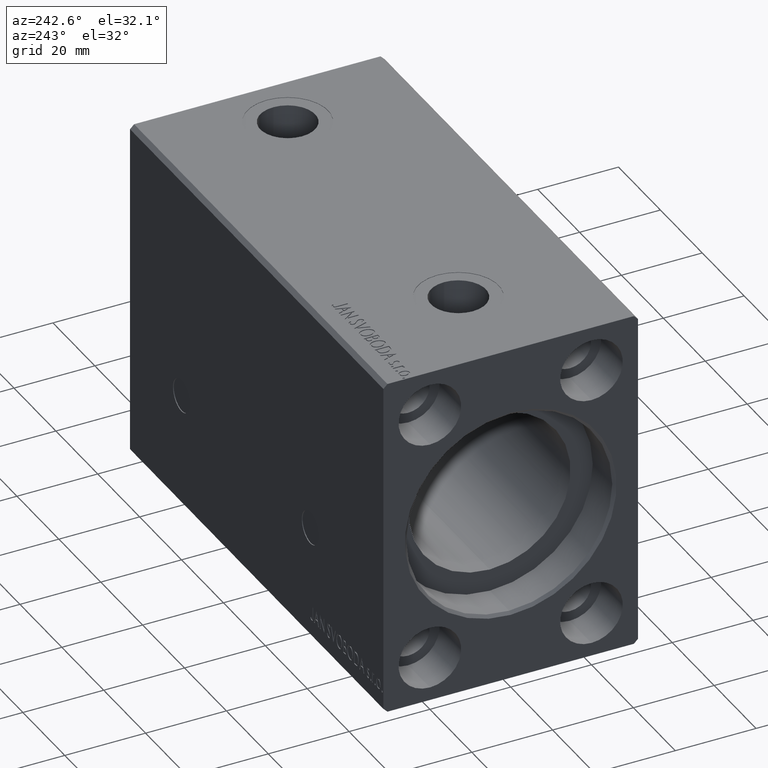
[diagram: clean part render]
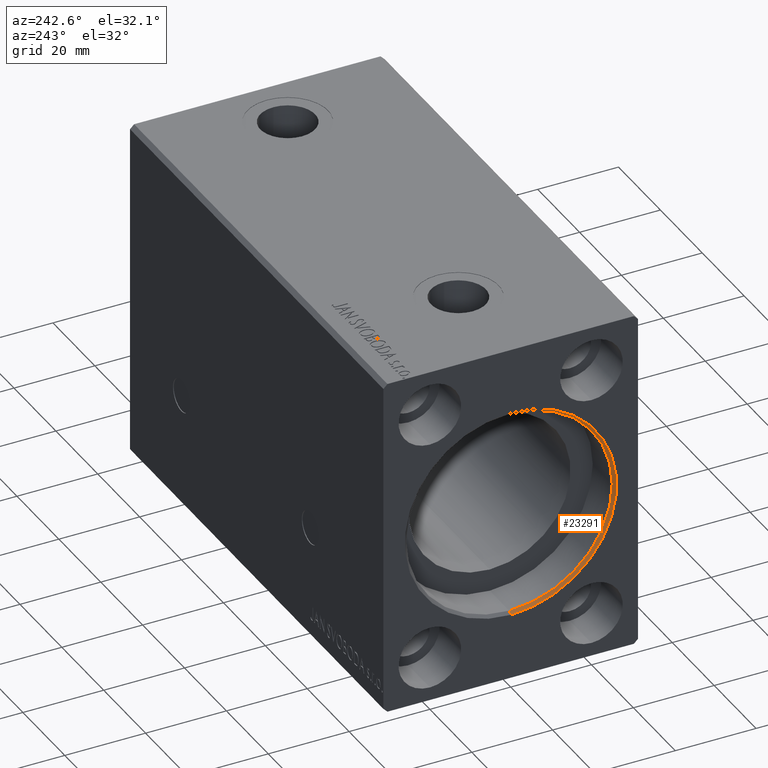
[diagram: same view with one face highlighted and labeled with its STEP entity id]
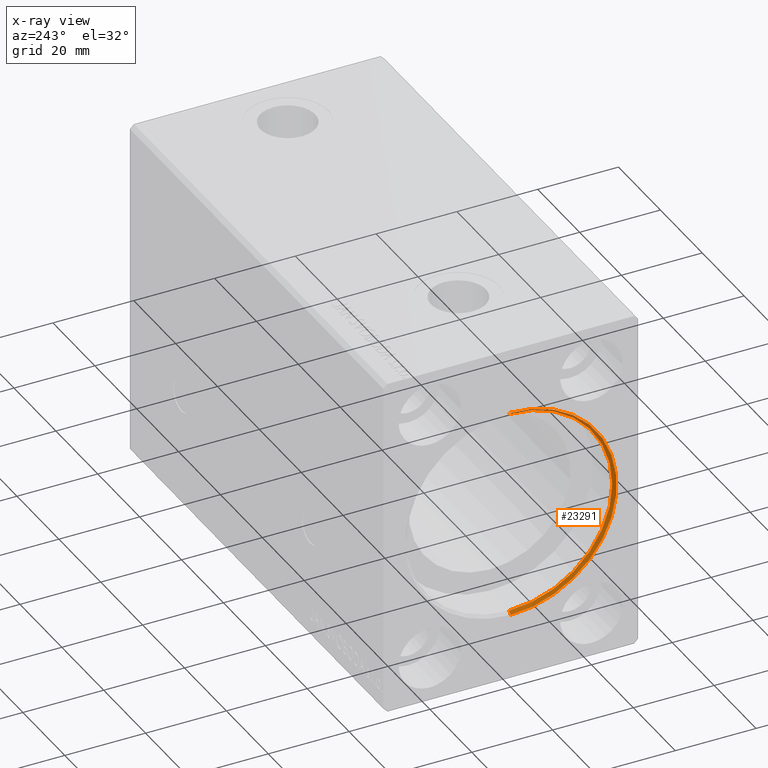
[diagram: x-ray of the same camera — body ghosted, the highlighted face saturated]
A machine part, auxiliary view. The second image highlights one B-rep face of the part: STEP entity #23291.
The next image is the same camera in x-ray: the body ghosted, the highlighted face saturated — about 0% of this face is hidden behind the body in this view.
In plain terms, the highlighted conical surface has half-angle 45 deg.
Its self-contained STEP definition (entity closure, byte-faithful):
#188 = VERTEX_POINT ( 'NONE', #29934 ) ;
#299 = AXIS2_PLACEMENT_3D ( 'NONE', #22300, #24726, #38055 ) ;
#964 = CARTESIAN_POINT ( 'NONE',  ( 0.7000000000000200506, 3.122849337825750222E-15, -25.50000000000000000 ) ) ;
#1626 = EDGE_CURVE ( 'NONE', #17106, #29023, #8030, .T. ) ;
#2312 = CIRCLE ( 'NONE', #31077, 26.20000000000001350 ) ;
#3985 = DIRECTION ( 'NONE',  ( 0.000000000000000000, 0.000000000000000000, -1.000000000000000000 ) ) ;
#5345 = CARTESIAN_POINT ( 'NONE',  ( 0.7000000000000200506, 0.000000000000000000, 25.50000000000000000 ) ) ;
#6777 = DIRECTION ( 'NONE',  ( -1.000000000000000000, 0.000000000000000000, 0.000000000000000000 ) ) ;
#8030 = LINE ( 'NONE', #964, #31849 ) ;
#8974 = ORIENTED_EDGE ( 'NONE', *, *, #1626, .T. ) ;
#10426 = DIRECTION ( 'NONE',  ( 0.000000000000000000, 0.000000000000000000, -1.000000000000000000 ) ) ;
#10549 = VECTOR ( 'NONE', #24448, 1000.000000000000114 ) ;
#12826 = CARTESIAN_POINT ( 'NONE',  ( 0.000000000000000000, 0.000000000000000000, 26.20000000000001350 ) ) ;
#13441 = CARTESIAN_POINT ( 'NONE',  ( 0.000000000000000000, 0.000000000000000000, 0.000000000000000000 ) ) ;
#15665 = EDGE_CURVE ( 'NONE', #31373, #29023, #2312, .T. ) ;
#17106 = VERTEX_POINT ( 'NONE', #35022 ) ;
#17404 = EDGE_CURVE ( 'NONE', #188, #31373, #30893, .T. ) ;
#18840 = EDGE_CURVE ( 'NONE', #17106, #188, #21460, .T. ) ;
#21460 = CIRCLE ( 'NONE', #22235, 25.50000000000000000 ) ;
#21526 = ORIENTED_EDGE ( 'NONE', *, *, #17404, .F. ) ;
#22235 = AXIS2_PLACEMENT_3D ( 'NONE', #36201, #6777, #3985 ) ;
#22300 = CARTESIAN_POINT ( 'NONE',  ( 0.7000000000000200506, 0.000000000000000000, 0.000000000000000000 ) ) ;
#22350 = ORIENTED_EDGE ( 'NONE', *, *, #18840, .F. ) ;
#23291 = ADVANCED_FACE ( 'NONE', ( #42296 ), #36658, .F. ) ;
#24448 = DIRECTION ( 'NONE',  ( -0.7071067811865492381, 0.000000000000000000, 0.7071067811865457964 ) ) ;
#24726 = DIRECTION ( 'NONE',  ( -1.000000000000000000, 0.000000000000000000, 0.000000000000000000 ) ) ;
#26544 = DIRECTION ( 'NONE',  ( 1.000000000000000000, 0.000000000000000000, 0.000000000000000000 ) ) ;
#29023 = VERTEX_POINT ( 'NONE', #37187 ) ;
#29934 = CARTESIAN_POINT ( 'NONE',  ( 0.7000000000000200506, 0.000000000000000000, 25.50000000000000000 ) ) ;
#30893 = LINE ( 'NONE', #5345, #10549 ) ;
#31077 = AXIS2_PLACEMENT_3D ( 'NONE', #13441, #26544, #10426 ) ;
#31373 = VERTEX_POINT ( 'NONE', #12826 ) ;
#31849 = VECTOR ( 'NONE', #37461, 1000.000000000000114 ) ;
#35022 = CARTESIAN_POINT ( 'NONE',  ( 0.7000000000000200506, 3.122849337825750222E-15, -25.50000000000000000 ) ) ;
#35827 = ORIENTED_EDGE ( 'NONE', *, *, #15665, .F. ) ;
#36201 = CARTESIAN_POINT ( 'NONE',  ( 0.7000000000000200506, 0.000000000000000000, 0.000000000000000000 ) ) ;
#36658 = CONICAL_SURFACE ( 'NONE', #299, 25.50000000000000000, 0.7853981633974458365 ) ;
#37187 = CARTESIAN_POINT ( 'NONE',  ( 0.000000000000000000, 3.208574613766067271E-15, -26.20000000000001350 ) ) ;
#37461 = DIRECTION ( 'NONE',  ( -0.7071067811865492381, 8.659560562354910671E-17, -0.7071067811865457964 ) ) ;
#38055 = DIRECTION ( 'NONE',  ( 0.000000000000000000, 0.000000000000000000, 1.000000000000000000 ) ) ;
#41339 = EDGE_LOOP ( 'NONE', ( #22350, #8974, #35827, #21526 ) ) ;
#42296 = FACE_OUTER_BOUND ( 'NONE', #41339, .T. ) ;